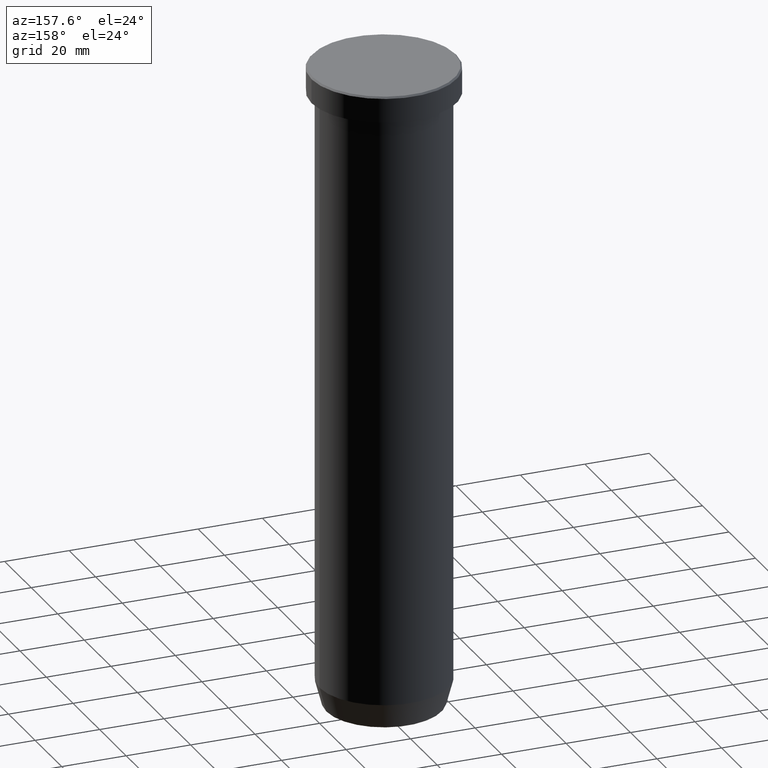
[diagram: clean part render]
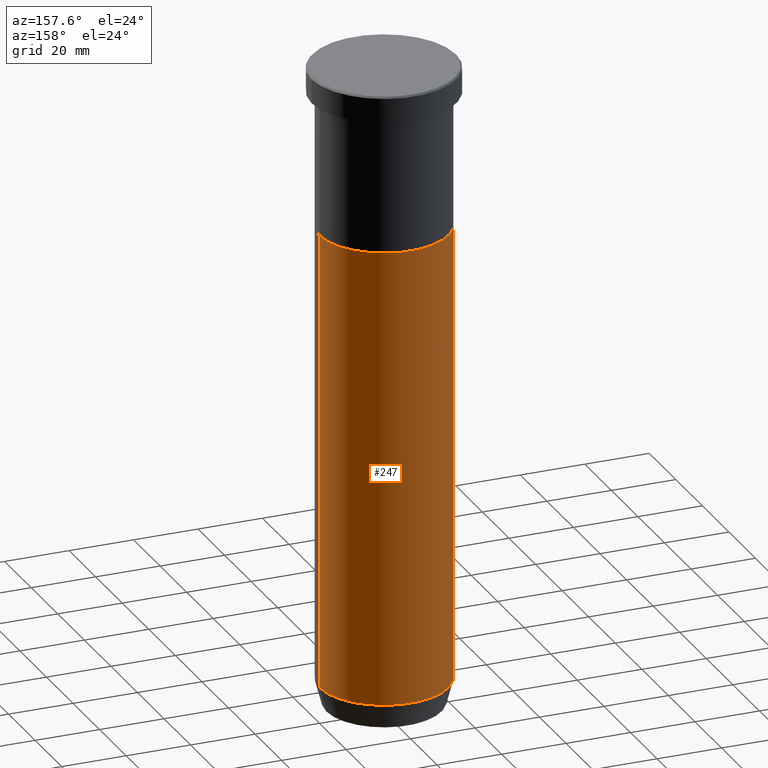
[diagram: same view with one face highlighted and labeled with its STEP entity id]
A machine part, auxiliary view. The second image highlights one B-rep face of the part: STEP entity #247.
In plain terms, the highlighted cylindrical surface (partial cylindrical patch) has radius 20 mm, axis along (-0, -0, 1).
Its self-contained STEP definition (entity closure, byte-faithful):
#3 = VECTOR ( 'NONE', #46, 1000.000000000000000 ) ;
#14 = EDGE_CURVE ( 'NONE', #201, #141, #471, .T. ) ;
#26 = DIRECTION ( 'NONE',  ( -0.000000000000000000, -0.000000000000000000, 1.000000000000000000 ) ) ;
#37 = CARTESIAN_POINT ( 'NONE',  ( -20.00000000000000000, 2.449293598294706513E-15, -50.00000000000000000 ) ) ;
#40 = ORIENTED_EDGE ( 'NONE', *, *, #14, .F. ) ;
#46 = DIRECTION ( 'NONE',  ( -0.000000000000000000, -0.000000000000000000, 1.000000000000000000 ) ) ;
#62 = CARTESIAN_POINT ( 'NONE',  ( -20.00000000000000000, 2.449293598294706513E-15, -192.0000000000000000 ) ) ;
#70 = LINE ( 'NONE', #579, #96 ) ;
#71 = DIRECTION ( 'NONE',  ( 1.000000000000000000, 0.000000000000000000, 0.000000000000000000 ) ) ;
#81 = FACE_OUTER_BOUND ( 'NONE', #240, .T. ) ;
#96 = VECTOR ( 'NONE', #220, 1000.000000000000000 ) ;
#98 = EDGE_CURVE ( 'NONE', #181, #257, #70, .T. ) ;
#105 = CIRCLE ( 'NONE', #165, 20.00000000000000000 ) ;
#141 = VERTEX_POINT ( 'NONE', #447 ) ;
#165 = AXIS2_PLACEMENT_3D ( 'NONE', #221, #26, #402 ) ;
#181 = VERTEX_POINT ( 'NONE', #62 ) ;
#201 = VERTEX_POINT ( 'NONE', #497 ) ;
#220 = DIRECTION ( 'NONE',  ( -0.000000000000000000, -0.000000000000000000, 1.000000000000000000 ) ) ;
#221 = CARTESIAN_POINT ( 'NONE',  ( 0.000000000000000000, 0.000000000000000000, -192.0000000000000000 ) ) ;
#231 = CYLINDRICAL_SURFACE ( 'NONE', #517, 20.00000000000000000 ) ;
#240 = EDGE_LOOP ( 'NONE', ( #500, #522, #556, #40 ) ) ;
#247 = ADVANCED_FACE ( 'NONE', ( #81 ), #231, .T. ) ;
#257 = VERTEX_POINT ( 'NONE', #37 ) ;
#281 = CIRCLE ( 'NONE', #519, 20.00000000000000000 ) ;
#300 = EDGE_CURVE ( 'NONE', #201, #181, #105, .T. ) ;
#315 = DIRECTION ( 'NONE',  ( -0.000000000000000000, -0.000000000000000000, 1.000000000000000000 ) ) ;
#336 = CARTESIAN_POINT ( 'NONE',  ( 20.00000000000000000, 0.000000000000000000, 0.000000000000000000 ) ) ;
#402 = DIRECTION ( 'NONE',  ( 1.000000000000000000, 0.000000000000000000, 0.000000000000000000 ) ) ;
#411 = CARTESIAN_POINT ( 'NONE',  ( 0.000000000000000000, 0.000000000000000000, 0.000000000000000000 ) ) ;
#437 = DIRECTION ( 'NONE',  ( -0.000000000000000000, -0.000000000000000000, 1.000000000000000000 ) ) ;
#447 = CARTESIAN_POINT ( 'NONE',  ( 20.00000000000000000, 0.000000000000000000, -50.00000000000000000 ) ) ;
#471 = LINE ( 'NONE', #336, #3 ) ;
#472 = CARTESIAN_POINT ( 'NONE',  ( 0.000000000000000000, 0.000000000000000000, -50.00000000000000000 ) ) ;
#497 = CARTESIAN_POINT ( 'NONE',  ( 20.00000000000000000, 0.000000000000000000, -192.0000000000000000 ) ) ;
#499 = DIRECTION ( 'NONE',  ( 1.000000000000000000, 0.000000000000000000, 0.000000000000000000 ) ) ;
#500 = ORIENTED_EDGE ( 'NONE', *, *, #300, .T. ) ;
#517 = AXIS2_PLACEMENT_3D ( 'NONE', #411, #315, #499 ) ;
#519 = AXIS2_PLACEMENT_3D ( 'NONE', #472, #437, #71 ) ;
#522 = ORIENTED_EDGE ( 'NONE', *, *, #98, .T. ) ;
#556 = ORIENTED_EDGE ( 'NONE', *, *, #597, .F. ) ;
#579 = CARTESIAN_POINT ( 'NONE',  ( -20.00000000000000000, 2.449293598294706513E-15, 0.000000000000000000 ) ) ;
#597 = EDGE_CURVE ( 'NONE', #141, #257, #281, .T. ) ;